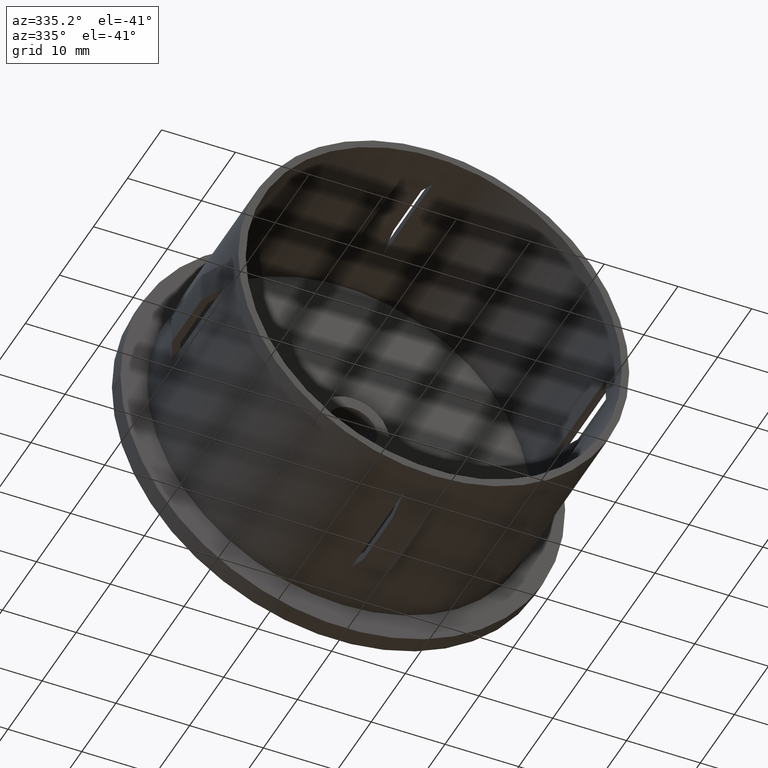
[diagram: clean part render]
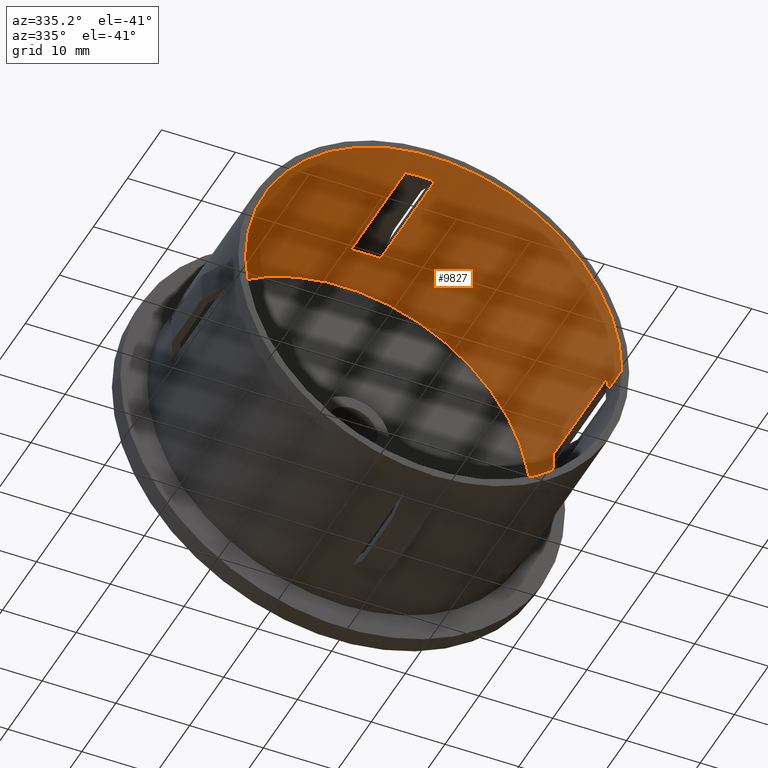
[diagram: same view with one face highlighted and labeled with its STEP entity id]
A machine part, auxiliary view. The second image highlights one B-rep face of the part: STEP entity #9827.
In plain terms, the highlighted cylindrical surface (partial cylindrical patch) has radius 25.5 mm, axis along (-0, 1, -0).
Its self-contained STEP definition (entity closure, byte-faithful):
#19 = DIRECTION ( 'NONE',  ( -1.224646799147353200E-016, 1.000000000000000000, -0.0000000000000000000 ) ) ;
#61 = CARTESIAN_POINT ( 'NONE',  ( 25.50000000000000400, 29.20000000000000300, 3.122849337825751000E-015 ) ) ;
#124 = DIRECTION ( 'NONE',  ( -1.224646799147353200E-016, 1.000000000000000000, -0.0000000000000000000 ) ) ;
#391 = DIRECTION ( 'NONE',  ( -1.000000000000000000, -1.360567432138672100E-016, 0.0000000000000000000 ) ) ;
#426 = AXIS2_PLACEMENT_3D ( 'NONE', #11776, #9292, #2981 ) ;
#434 = VERTEX_POINT ( 'NONE', #12790 ) ;
#473 = VERTEX_POINT ( 'NONE', #13007 ) ;
#510 = ORIENTED_EDGE ( 'NONE', *, *, #4742, .F. ) ;
#525 = VERTEX_POINT ( 'NONE', #2761 ) ;
#527 = EDGE_CURVE ( 'NONE', #4867, #525, #15027, .T. ) ;
#571 = CARTESIAN_POINT ( 'NONE',  ( 3.453503973595536000E-015, -3.469446951953614200E-015, 0.0000000000000000000 ) ) ;
#613 = VECTOR ( 'NONE', #11321, 1000.000000000000000 ) ;
#642 = ORIENTED_EDGE ( 'NONE', *, *, #4986, .T. ) ;
#677 = CARTESIAN_POINT ( 'NONE',  ( 25.50000000000000400, 29.20000000000000300, 3.122849337825751000E-015 ) ) ;
#722 = CARTESIAN_POINT ( 'NONE',  ( -25.50000000000000400, 29.19999999999999600, 0.0000000000000000000 ) ) ;
#751 = CARTESIAN_POINT ( 'NONE',  ( 2.000000000000006200, 61.24134675736339500, 25.42144763777232100 ) ) ;
#982 = DIRECTION ( 'NONE',  ( -1.000000000000000000, -1.360567432138672100E-016, 0.0000000000000000000 ) ) ;
#1023 = ORIENTED_EDGE ( 'NONE', *, *, #8891, .T. ) ;
#1044 = ORIENTED_EDGE ( 'NONE', *, *, #12701, .F. ) ;
#1095 = CARTESIAN_POINT ( 'NONE',  ( 1.004210375300830500E-015, 19.99999999999999300, 0.0000000000000000000 ) ) ;
#1144 = ORIENTED_EDGE ( 'NONE', *, *, #10051, .T. ) ;
#1220 = DIRECTION ( 'NONE',  ( 0.0000000000000000000, -1.000000000000000000, 0.0000000000000000000 ) ) ;
#1229 = VERTEX_POINT ( 'NONE', #3646 ) ;
#1315 = DIRECTION ( 'NONE',  ( -1.000000000000000000, -1.360567432138672100E-016, 0.0000000000000000000 ) ) ;
#1614 = VECTOR ( 'NONE', #1220, 1000.000000000000000 ) ;
#1628 = CARTESIAN_POINT ( 'NONE',  ( 25.50000000000000400, 4.000000000000000000, 3.122849337825751000E-015 ) ) ;
#1805 = FACE_OUTER_BOUND ( 'NONE', #6056, .T. ) ;
#1812 = LINE ( 'NONE', #751, #12156 ) ;
#1815 = EDGE_CURVE ( 'NONE', #5219, #3916, #10958, .T. ) ;
#2184 = EDGE_CURVE ( 'NONE', #14720, #473, #13920, .T. ) ;
#2466 = VERTEX_POINT ( 'NONE', #7966 ) ;
#2593 = DIRECTION ( 'NONE',  ( -1.000000000000000000, -1.360567432138672300E-016, 0.0000000000000000000 ) ) ;
#2655 = AXIS2_PLACEMENT_3D ( 'NONE', #6482, #19, #2593 ) ;
#2695 = CARTESIAN_POINT ( 'NONE',  ( 25.42144763777232400, 61.24134675736339500, 2.000000000000000000 ) ) ;
#2761 = CARTESIAN_POINT ( 'NONE',  ( 25.50000000000000400, -3.465976141278638700E-016, 3.122849337825751000E-015 ) ) ;
#2777 = EDGE_CURVE ( 'NONE', #525, #8606, #12791, .T. ) ;
#2790 = CARTESIAN_POINT ( 'NONE',  ( 1.836970198721030900E-016, 26.69999999999999900, 0.0000000000000000000 ) ) ;
#2902 = AXIS2_PLACEMENT_3D ( 'NONE', #3076, #5450, #391 ) ;
#2981 = DIRECTION ( 'NONE',  ( -1.000000000000000000, -1.360567432138672100E-016, 0.0000000000000000000 ) ) ;
#3076 = CARTESIAN_POINT ( 'NONE',  ( -1.224646799147354400E-016, 29.19999999999999900, 0.0000000000000000000 ) ) ;
#3101 = ORIENTED_EDGE ( 'NONE', *, *, #6958, .F. ) ;
#3279 = CIRCLE ( 'NONE', #2655, 25.50000000000000000 ) ;
#3427 = DIRECTION ( 'NONE',  ( 0.0000000000000000000, -1.000000000000000000, 0.0000000000000000000 ) ) ;
#3451 = ORIENTED_EDGE ( 'NONE', *, *, #8149, .F. ) ;
#3646 = CARTESIAN_POINT ( 'NONE',  ( -25.49999999999999600, 3.999999999999993300, 0.0000000000000000000 ) ) ;
#3728 = CARTESIAN_POINT ( 'NONE',  ( -1.999999999999992700, 19.99999999999999300, 25.42144763777232400 ) ) ;
#3815 = DIRECTION ( 'NONE',  ( -1.000000000000000000, -1.360567432138672300E-016, 0.0000000000000000000 ) ) ;
#3916 = VERTEX_POINT ( 'NONE', #7103 ) ;
#4001 = DIRECTION ( 'NONE',  ( -1.000000000000000000, -1.360567432138672300E-016, 0.0000000000000000000 ) ) ;
#4055 = DIRECTION ( 'NONE',  ( -1.000000000000000000, -1.360567432138672300E-016, 0.0000000000000000000 ) ) ;
#4086 = CARTESIAN_POINT ( 'NONE',  ( -25.50000000000000000, 26.69999999999999600, 0.0000000000000000000 ) ) ;
#4128 = EDGE_CURVE ( 'NONE', #5052, #5219, #12418, .T. ) ;
#4349 = CARTESIAN_POINT ( 'NONE',  ( -25.42144763777231700, 61.24134675736339500, 2.000000000000000000 ) ) ;
#4417 = CARTESIAN_POINT ( 'NONE',  ( 2.000000000000008000, 19.99999999999999300, 25.42144763777232400 ) ) ;
#4689 = CARTESIAN_POINT ( 'NONE',  ( -25.42144763777231700, 3.999999999999993300, 2.000000000000000000 ) ) ;
#4742 = EDGE_CURVE ( 'NONE', #15759, #15135, #5856, .T. ) ;
#4867 = VERTEX_POINT ( 'NONE', #9930 ) ;
#4986 = EDGE_CURVE ( 'NONE', #1229, #15135, #6648, .T. ) ;
#5052 = VERTEX_POINT ( 'NONE', #7604 ) ;
#5219 = VERTEX_POINT ( 'NONE', #12187 ) ;
#5356 = EDGE_CURVE ( 'NONE', #2466, #8606, #3279, .T. ) ;
#5450 = DIRECTION ( 'NONE',  ( -1.224646799147353200E-016, 1.000000000000000000, -0.0000000000000000000 ) ) ;
#5677 = ORIENTED_EDGE ( 'NONE', *, *, #5356, .T. ) ;
#5856 = LINE ( 'NONE', #4349, #8842 ) ;
#5900 = VERTEX_POINT ( 'NONE', #15782 ) ;
#6056 = EDGE_LOOP ( 'NONE', ( #14824, #15268, #13785, #642, #510, #1044, #1144, #13600, #7102, #15980, #1023, #5677 ) ) ;
#6188 = FACE_BOUND ( 'NONE', #12804, .T. ) ;
#6338 = DIRECTION ( 'NONE',  ( -1.224646799147353200E-016, 1.000000000000000000, -0.0000000000000000000 ) ) ;
#6482 = CARTESIAN_POINT ( 'NONE',  ( 2.963645253936595000E-015, 3.999999999999996400, 0.0000000000000000000 ) ) ;
#6602 = LINE ( 'NONE', #2695, #1614 ) ;
#6648 = CIRCLE ( 'NONE', #10841, 25.50000000000000000 ) ;
#6742 = AXIS2_PLACEMENT_3D ( 'NONE', #1095, #8592, #982 ) ;
#6958 = EDGE_CURVE ( 'NONE', #14192, #434, #1812, .T. ) ;
#7102 = ORIENTED_EDGE ( 'NONE', *, *, #1815, .F. ) ;
#7103 = CARTESIAN_POINT ( 'NONE',  ( 25.50000000000000000, 26.70000000000000300, 3.122849337825750600E-015 ) ) ;
#7172 = CIRCLE ( 'NONE', #12971, 25.50000000000000000 ) ;
#7569 = EDGE_CURVE ( 'NONE', #11005, #3916, #7172, .T. ) ;
#7604 = CARTESIAN_POINT ( 'NONE',  ( 25.42144763777232400, 19.99999999999998900, 2.000000000000000000 ) ) ;
#7711 = DIRECTION ( 'NONE',  ( -1.224646799147353200E-016, 1.000000000000000000, -0.0000000000000000000 ) ) ;
#7796 = DIRECTION ( 'NONE',  ( -1.224646799147353200E-016, 1.000000000000000000, -0.0000000000000000000 ) ) ;
#7966 = CARTESIAN_POINT ( 'NONE',  ( 25.42144763777232400, 4.000000000000000000, 1.999999999999999600 ) ) ;
#8149 = EDGE_CURVE ( 'NONE', #14720, #14192, #9750, .T. ) ;
#8208 = CARTESIAN_POINT ( 'NONE',  ( -25.42144763777232400, 19.99999999999998900, 2.000000000000000000 ) ) ;
#8280 = ORIENTED_EDGE ( 'NONE', *, *, #9189, .T. ) ;
#8532 = VECTOR ( 'NONE', #16065, 1000.000000000000000 ) ;
#8592 = DIRECTION ( 'NONE',  ( -1.224646799147353200E-016, 1.000000000000000000, -0.0000000000000000000 ) ) ;
#8606 = VERTEX_POINT ( 'NONE', #1628 ) ;
#8785 = AXIS2_PLACEMENT_3D ( 'NONE', #13909, #7711, #1315 ) ;
#8842 = VECTOR ( 'NONE', #13234, 1000.000000000000000 ) ;
#8891 = EDGE_CURVE ( 'NONE', #5052, #2466, #6602, .T. ) ;
#8990 = CARTESIAN_POINT ( 'NONE',  ( 2.963645253936595000E-015, 3.999999999999996400, 0.0000000000000000000 ) ) ;
#9108 = DIRECTION ( 'NONE',  ( -1.224646799147353200E-016, 1.000000000000000000, -0.0000000000000000000 ) ) ;
#9189 = EDGE_CURVE ( 'NONE', #473, #434, #14700, .T. ) ;
#9292 = DIRECTION ( 'NONE',  ( -1.224646799147353200E-016, 1.000000000000000000, -0.0000000000000000000 ) ) ;
#9750 = CIRCLE ( 'NONE', #426, 25.50000000000000400 ) ;
#9751 = VECTOR ( 'NONE', #3427, 1000.000000000000000 ) ;
#9827 = ADVANCED_FACE ( 'NONE', ( #1805, #6188 ), #11143, .F. ) ;
#9930 = CARTESIAN_POINT ( 'NONE',  ( -25.49999999999999600, -6.592296289779364400E-015, 0.0000000000000000000 ) ) ;
#10051 = EDGE_CURVE ( 'NONE', #5900, #11005, #10747, .T. ) ;
#10747 = LINE ( 'NONE', #15125, #613 ) ;
#10841 = AXIS2_PLACEMENT_3D ( 'NONE', #8990, #6338, #4001 ) ;
#10958 = LINE ( 'NONE', #61, #14127 ) ;
#11005 = VERTEX_POINT ( 'NONE', #4086 ) ;
#11143 = CYLINDRICAL_SURFACE ( 'NONE', #2902, 25.50000000000000400 ) ;
#11321 = DIRECTION ( 'NONE',  ( -1.224646799147353200E-016, 1.000000000000000000, -0.0000000000000000000 ) ) ;
#11413 = CARTESIAN_POINT ( 'NONE',  ( 2.963645253936595000E-015, 3.999999999999996400, 0.0000000000000000000 ) ) ;
#11584 = EDGE_CURVE ( 'NONE', #4867, #1229, #12298, .T. ) ;
#11776 = CARTESIAN_POINT ( 'NONE',  ( 1.004210375300830500E-015, 19.99999999999999300, 0.0000000000000000000 ) ) ;
#11971 = CARTESIAN_POINT ( 'NONE',  ( -1.999999999999993600, 61.24134675736339500, 25.42144763777232100 ) ) ;
#11985 = VECTOR ( 'NONE', #11998, 1000.000000000000000 ) ;
#11998 = DIRECTION ( 'NONE',  ( -1.224646799147353200E-016, 1.000000000000000000, -0.0000000000000000000 ) ) ;
#12033 = ORIENTED_EDGE ( 'NONE', *, *, #2184, .T. ) ;
#12156 = VECTOR ( 'NONE', #13342, 1000.000000000000000 ) ;
#12187 = CARTESIAN_POINT ( 'NONE',  ( 25.50000000000000400, 19.99999999999999600, 3.122849337825751000E-015 ) ) ;
#12298 = LINE ( 'NONE', #722, #8532 ) ;
#12418 = CIRCLE ( 'NONE', #8785, 25.50000000000000400 ) ;
#12701 = EDGE_CURVE ( 'NONE', #5900, #15759, #14648, .T. ) ;
#12790 = CARTESIAN_POINT ( 'NONE',  ( 2.000000000000006200, 4.000000000008108200, 25.42144763777232100 ) ) ;
#12791 = LINE ( 'NONE', #677, #11985 ) ;
#12804 = EDGE_LOOP ( 'NONE', ( #8280, #3101, #3451, #12033 ) ) ;
#12971 = AXIS2_PLACEMENT_3D ( 'NONE', #2790, #9108, #4055 ) ;
#13007 = CARTESIAN_POINT ( 'NONE',  ( -1.999999999999993600, 4.000000000016227000, 25.42144763777232100 ) ) ;
#13234 = DIRECTION ( 'NONE',  ( 0.0000000000000000000, -1.000000000000000000, 0.0000000000000000000 ) ) ;
#13342 = DIRECTION ( 'NONE',  ( 0.0000000000000000000, -1.000000000000000000, 0.0000000000000000000 ) ) ;
#13600 = ORIENTED_EDGE ( 'NONE', *, *, #7569, .T. ) ;
#13785 = ORIENTED_EDGE ( 'NONE', *, *, #11584, .T. ) ;
#13909 = CARTESIAN_POINT ( 'NONE',  ( 1.004210375300830500E-015, 19.99999999999999300, 0.0000000000000000000 ) ) ;
#13920 = LINE ( 'NONE', #11971, #9751 ) ;
#14127 = VECTOR ( 'NONE', #124, 1000.000000000000000 ) ;
#14192 = VERTEX_POINT ( 'NONE', #4417 ) ;
#14270 = DIRECTION ( 'NONE',  ( -1.000000000000000000, -1.224646799147353000E-016, 0.0000000000000000000 ) ) ;
#14317 = DIRECTION ( 'NONE',  ( -1.224646799147353200E-016, 1.000000000000000000, -0.0000000000000000000 ) ) ;
#14345 = AXIS2_PLACEMENT_3D ( 'NONE', #11413, #7796, #3815 ) ;
#14648 = CIRCLE ( 'NONE', #6742, 25.50000000000000400 ) ;
#14700 = CIRCLE ( 'NONE', #14345, 25.50000000000000000 ) ;
#14720 = VERTEX_POINT ( 'NONE', #3728 ) ;
#14824 = ORIENTED_EDGE ( 'NONE', *, *, #2777, .F. ) ;
#15027 = CIRCLE ( 'NONE', #15639, 25.50000000000000000 ) ;
#15125 = CARTESIAN_POINT ( 'NONE',  ( -25.50000000000000400, 29.19999999999999600, 0.0000000000000000000 ) ) ;
#15135 = VERTEX_POINT ( 'NONE', #4689 ) ;
#15268 = ORIENTED_EDGE ( 'NONE', *, *, #527, .F. ) ;
#15639 = AXIS2_PLACEMENT_3D ( 'NONE', #571, #14317, #14270 ) ;
#15759 = VERTEX_POINT ( 'NONE', #8208 ) ;
#15782 = CARTESIAN_POINT ( 'NONE',  ( -25.50000000000000400, 19.99999999999998900, 0.0000000000000000000 ) ) ;
#15980 = ORIENTED_EDGE ( 'NONE', *, *, #4128, .F. ) ;
#16065 = DIRECTION ( 'NONE',  ( -1.224646799147353200E-016, 1.000000000000000000, -0.0000000000000000000 ) ) ;